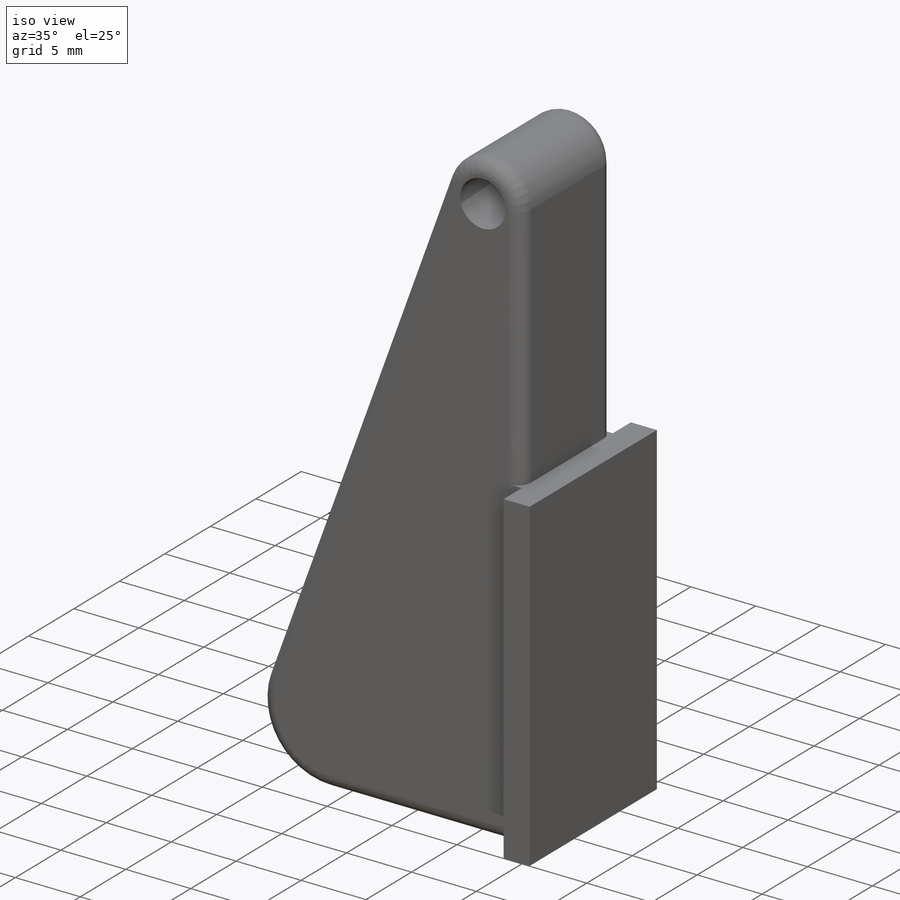
[diagram: iso view]
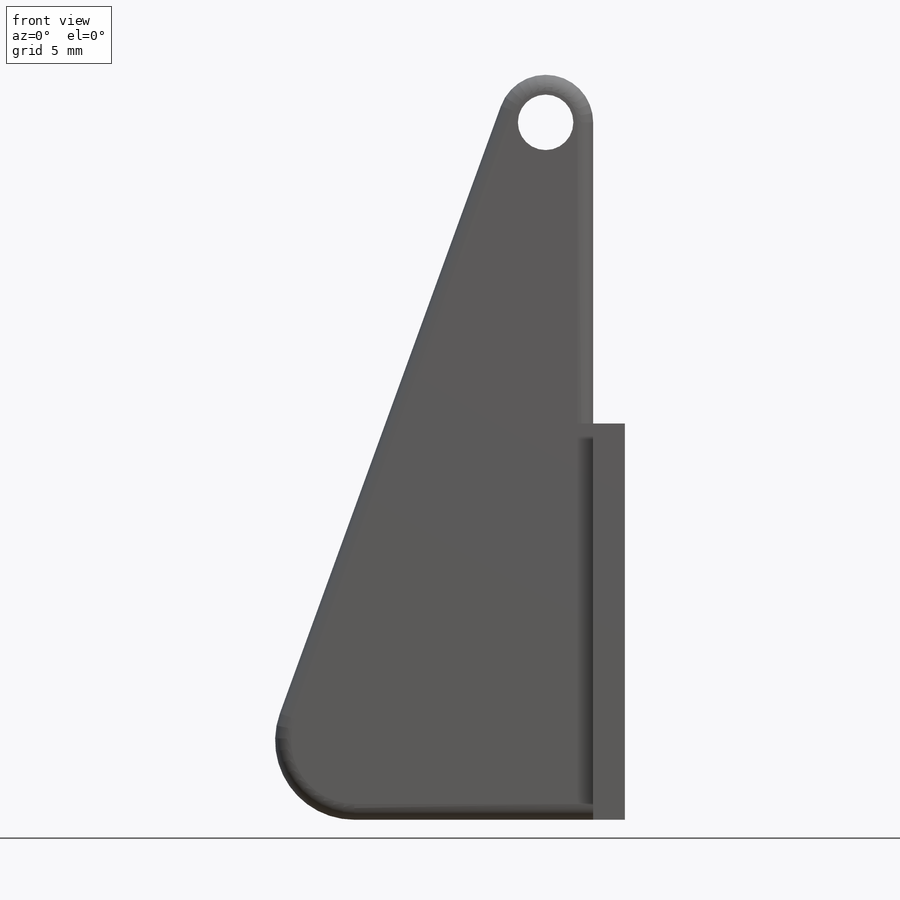
[diagram: front view]
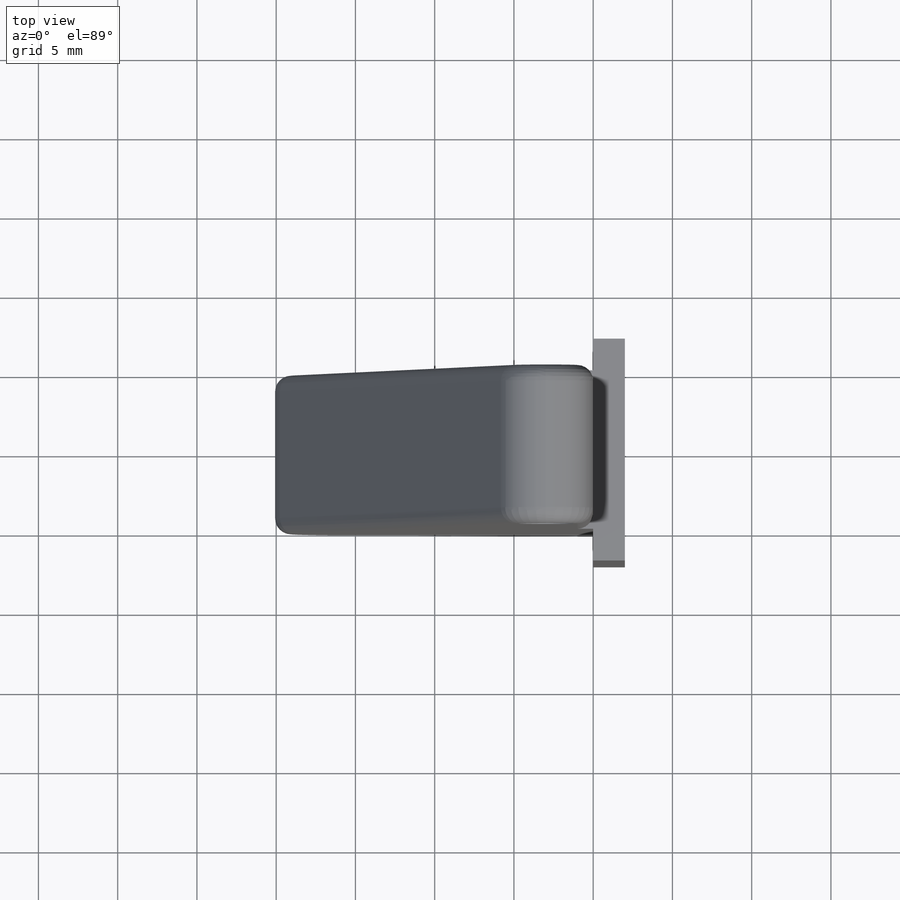
[diagram: top view]
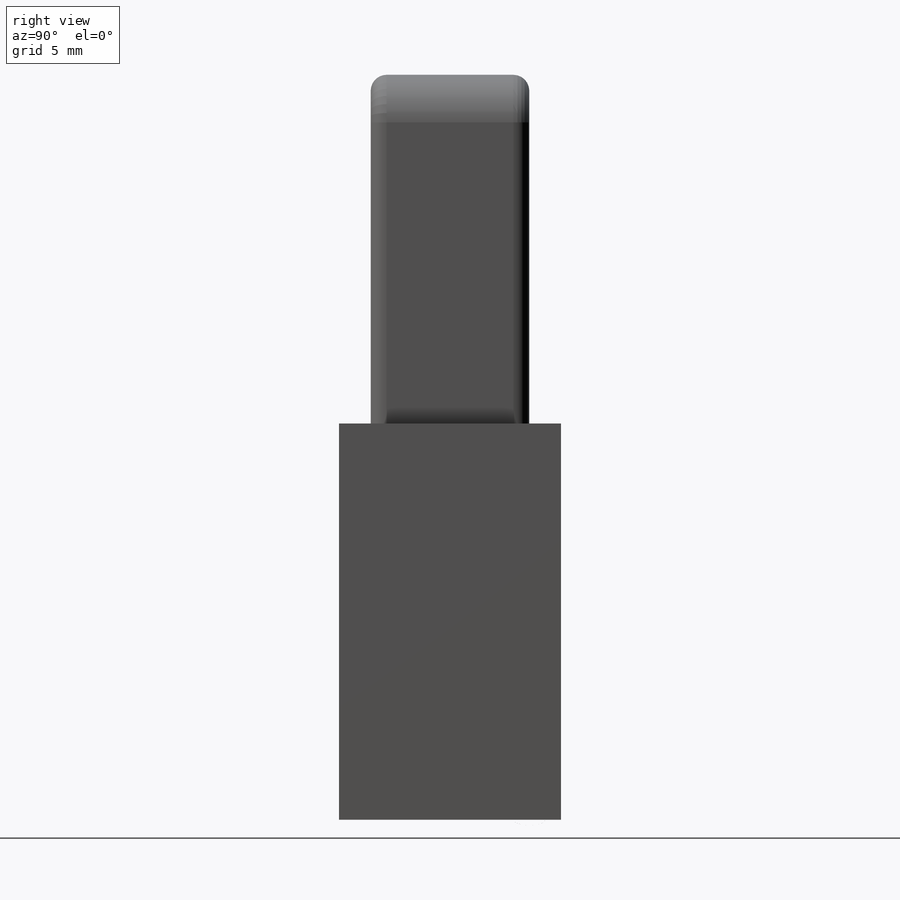
[diagram: right view]
SOLIDWORKS PART (.sldprt)
format: sldprt  version: not decoded by parser v0  size: 228,352 bytes
history: native  units: mm
features: plane x3, fillet x3, sketch x2, extrude x2, material x1 (+9 scaffold rows collapsed)
feature tree (20):
  scaffold x9  (default folders/planes/origin — collapsed)
  material  "ABS"
  plane  "Ebene vorne"
  plane  "Ebene oben"
  plane  "Ebene rechts"
  sketch  "Skizze1"  dims[c1.D2=3.5mm c1.D1=~19.037082mm c2.D1=20.0deg c2.D2=6.0mm c2.D3=~16.484865mm c3.D2=~16.484865mm c3.D1=~16.484865mm c4.D1=~108.728586deg c5.D1=~16.484865mm c6.D1=70.0deg c6.D3=3.0mm c6.D4=30.0mm c6.D5=3.0mm c6.D6=~31.925333mm c7.D4=44.0mm c7.D6=~22.207224mm c7.D7=3.0mm]
  extrude  "Aufsatz-Linear austragen1"  Depth=10mm
  sketch  "Skizze2"  dims[c1.D1=2.0mm c1.D2=2.0mm c1.D3=2.0mm c1.D4=2.0mm c2.D2=22.0mm]
  extrude  "Aufsatz-Linear austragen2"  Depth=2mm
  fillet  "Verrundung5"  Radius=3mm
  fillet  "Verrundung6"  Radius=5mm
  fillet  "Verrundung7"  Radius=1mm
decode coverage: 7 of 7 modeling features carry decoded parameters
note: ~ marks probable driven/reference dimensions
note: suppression state not decoded; provenance and decode notes live in map.json
